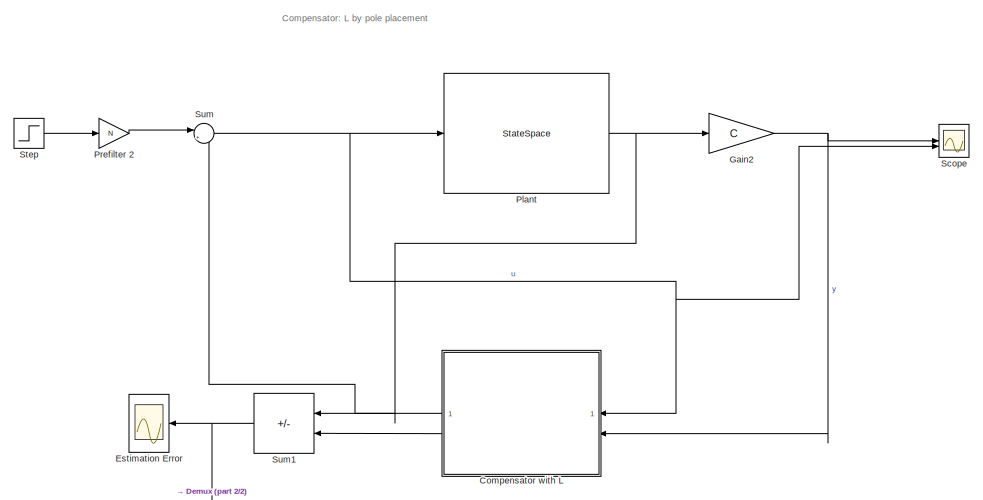
[diagram: root canvas - part 1/2, full width, top band]
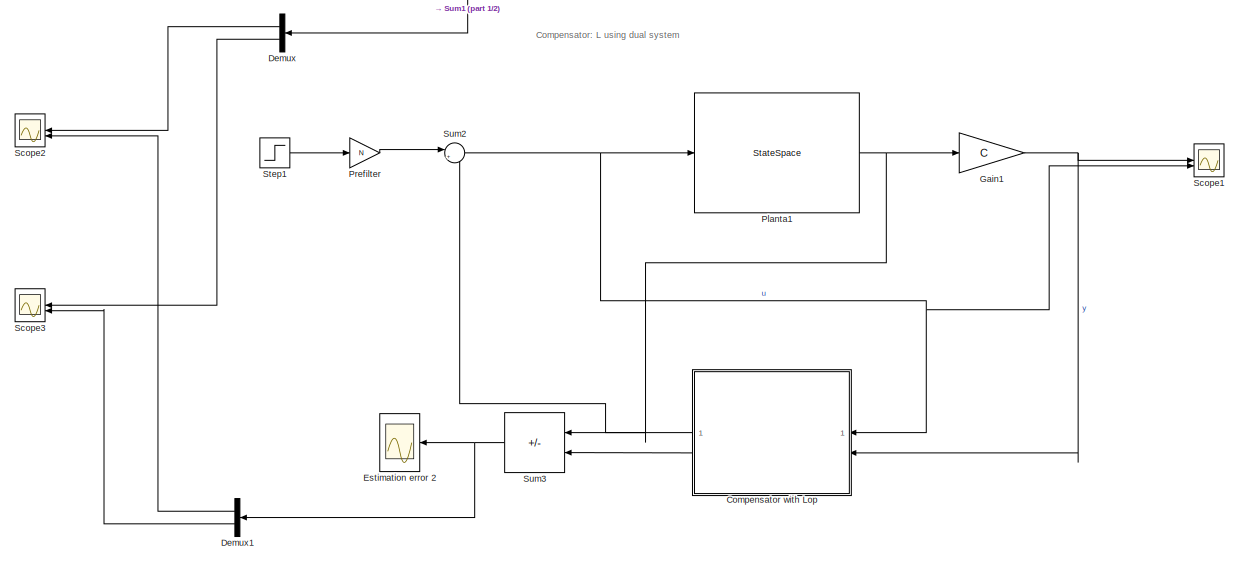
[diagram: root canvas - part 2/2, full width, bottom band]
MODEL slx_ad38aed5e36f
KIND model
CONFIG AbsTol = auto
CONFIG EnableMultiTasking = off
CONFIG FixedStep = auto
CONFIG MaxStep = 1e-3
CONFIG MinStep = auto
CONFIG RelTol = 1e-3
CONFIG SampleTimeConstraint = Unconstrained
CONFIG SolverName = VariableStepAuto
CONFIG StartTime = 0.0
CONFIG StopTime = 5
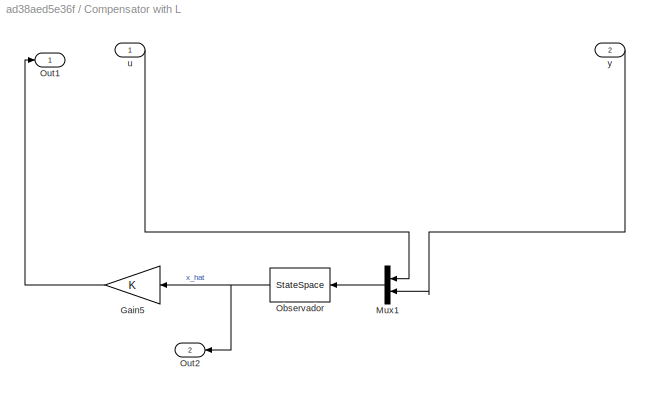
BLOCK [SubSystem] Compensator with L
BLOCK [Gain] Compensator with L/Gain5
  Gain = K
  Multiplication = Matrix(K*u) (u vector)
  NameLocation = top
BLOCK [Mux] Compensator with L/Mux1
  DisplayOption = bar
  Inputs = 2
BLOCK [StateSpace] Compensator with L/Observador
  A = A-L*C
  B = [B L]
  C = eye(2)
  D = zeros(2,2)
  InitialCondition = 0
BLOCK [Outport] Compensator with L/Out1
  VectorParamsAs1DForOutWhenUnconnected = off
BLOCK [Outport] Compensator with L/Out2
  Port = 2
  VectorParamsAs1DForOutWhenUnconnected = off
BLOCK [Inport] Compensator with L/u
BLOCK [Inport] Compensator with L/y
  Port = 2
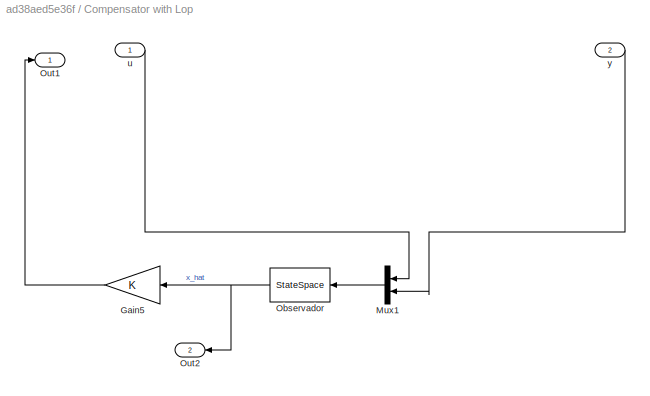
BLOCK [SubSystem] Compensator with Lop
BLOCK [Gain] Compensator with Lop/Gain5
  Gain = K
  Multiplication = Matrix(K*u) (u vector)
  NameLocation = top
BLOCK [Mux] Compensator with Lop/Mux1
  DisplayOption = bar
  Inputs = 2
BLOCK [StateSpace] Compensator with Lop/Observador
  A = A-Lop*C
  B = [B Lop]
  C = eye(2)
  D = zeros(2,2)
  InitialCondition = 0
BLOCK [Outport] Compensator with Lop/Out1
  VectorParamsAs1DForOutWhenUnconnected = off
BLOCK [Outport] Compensator with Lop/Out2
  Port = 2
  VectorParamsAs1DForOutWhenUnconnected = off
BLOCK [Inport] Compensator with Lop/u
BLOCK [Inport] Compensator with Lop/y
  Port = 2
BLOCK [Demux] Demux
  Outputs = 2
BLOCK [Demux] Demux1
  Outputs = 2
BLOCK [Scope] Estimation Error
  Floating = off
  NumInputPorts = 1
  ScopeSpecificationString = Simulink.scopes.TimeScopeBlockCfg('CurrentConfiguration', extmgr.ConfigurationSet(extmgr.Configuration('Core','General UI',true),extmgr.Configuration('Core','Source UI',true),extmgr.Configuration('Sources','WiredSimulink',true,'DataLoggingVariableName','ScopeData1'),extmgr.Configuration('Visuals','Time Domain',true,'SerializedDisplays',{struct('MinYLimReal','-0.00000000000000031','MaxYLimReal','0....<+1528ch>
BLOCK [Scope] Estimation error 2
  Floating = off
  NumInputPorts = 1
  ScopeSpecificationString = Simulink.scopes.TimeScopeBlockCfg('CurrentConfiguration', extmgr.ConfigurationSet(extmgr.Configuration('Core','General UI',true),extmgr.Configuration('Core','Source UI',true),extmgr.Configuration('Sources','WiredSimulink',true,'DataLoggingVariableName','ScopeData2'),extmgr.Configuration('Visuals','Time Domain',true,'SerializedDisplays',{struct('MinYLimReal','-0.0000000000000017','MaxYLimReal','0.0...<+1520ch>
BLOCK [Gain] Gain1
  Gain = C
  Multiplication = Matrix(K*u) (u vector)
BLOCK [Gain] Gain2
  Gain = C
  Multiplication = Matrix(K*u) (u vector)
BLOCK [StateSpace] Plant
  A = A
  B = B
  C = eye(2)
  D = zeros(2,1)
  InitialCondition = 0
BLOCK [StateSpace] Planta1
  A = A
  B = B
  C = eye(2)
  D = zeros(2,1)
  InitialCondition = 0
BLOCK [Gain] Prefilter
  Gain = N
BLOCK [Gain] Prefilter 2
  Gain = N
BLOCK [Scope] Scope
  Floating = off
  NumInputPorts = 2
  ScopeSpecificationString = Simulink.scopes.TimeScopeBlockCfg('CurrentConfiguration', extmgr.ConfigurationSet(extmgr.Configuration('Core','General UI',true,'FigureColor',[1 1 1]),extmgr.Configuration('Core','Source UI',true),extmgr.Configuration('Sources','WiredSimulink',true),extmgr.Configuration('Visuals','Time Domain',true,'SerializedDisplays',{struct('MinYLimReal','-13.31119','MaxYLimReal','51.77445','YLabelReal','','Min...<+1609ch>
BLOCK [Scope] Scope1
  Floating = off
  NumInputPorts = 2
  ScopeSpecificationString = Simulink.scopes.TimeScopeBlockCfg('CurrentConfiguration', extmgr.ConfigurationSet(extmgr.Configuration('Core','General UI',true,'FigureColor',[1 1 1]),extmgr.Configuration('Core','Source UI',true),extmgr.Configuration('Sources','WiredSimulink',true,'DataLoggingVariableName','ScopeData3'),extmgr.Configuration('Visuals','Time Domain',true,'SerializedDisplays',{struct('MinYLimReal','-13.31119','MaxYL...<+1697ch>
BLOCK [Scope] Scope2
  Floating = off
  NumInputPorts = 2
  ScopeSpecificationString = Simulink.scopes.TimeScopeBlockCfg('CurrentConfiguration', extmgr.ConfigurationSet(extmgr.Configuration('Core','General UI',true,'FigureColor',[1 1 1]),extmgr.Configuration('Core','Source UI',true),extmgr.Configuration('Sources','WiredSimulink',true,'DataLoggingVariableName','ScopeData1'),extmgr.Configuration('Visuals','Time Domain',true,'SerializedDisplays',{struct('MinYLimReal','-0.00000000000000...<+1679ch>
BLOCK [Scope] Scope3
  Floating = off
  NumInputPorts = 2
  ScopeSpecificationString = Simulink.scopes.TimeScopeBlockCfg('CurrentConfiguration', extmgr.ConfigurationSet(extmgr.Configuration('Core','General UI',true,'FigureColor',[1 1 1]),extmgr.Configuration('Core','Source UI',true),extmgr.Configuration('Sources','WiredSimulink',true,'DataLoggingVariableName','ScopeData2'),extmgr.Configuration('Visuals','Time Domain',true,'SerializedDisplays',{struct('MinYLimReal','-0.00000000000000...<+1721ch>
BLOCK [Step] Step
  SampleTime = 0
BLOCK [Step] Step1
  SampleTime = 0
BLOCK [Sum] Sum
  Inputs = |+-
BLOCK [Sum] Sum1
  IconShape = rectangular
  Inputs = |+-
BLOCK [Sum] Sum2
  Inputs = |+-
BLOCK [Sum] Sum3
  IconShape = rectangular
  Inputs = |+-
ANNOTATION (root): Compensator: L by pole placement
ANNOTATION (root): Compensator: L using dual system
LINE Compensator with L/Gain5:1 -> Compensator with L/Out1:1
LINE Compensator with L/Mux1:1 -> Compensator with L/Observador:1
NET Compensator with L/Observador:1 -> Compensator with L/Gain5:1, Compensator with L/Out2:1
LINE Compensator with L/u:1 -> Compensator with L/Mux1:1
LINE Compensator with L/y:1 -> Compensator with L/Mux1:2
LINE Compensator with L:1 -> Sum:2
LINE Compensator with L:2 -> Sum1:2
LINE Compensator with Lop/Gain5:1 -> Compensator with Lop/Out1:1
LINE Compensator with Lop/Mux1:1 -> Compensator with Lop/Observador:1
NET Compensator with Lop/Observador:1 -> Compensator with Lop/Gain5:1, Compensator with Lop/Out2:1
LINE Compensator with Lop/u:1 -> Compensator with Lop/Mux1:1
LINE Compensator with Lop/y:1 -> Compensator with Lop/Mux1:2
LINE Compensator with Lop:1 -> Sum2:2
LINE Compensator with Lop:2 -> Sum3:2
LINE Demux1:1 -> Scope2:2
LINE Demux1:2 -> Scope3:2
LINE Demux:1 -> Scope2:1
LINE Demux:2 -> Scope3:1
NET Gain1:1 -> Compensator with Lop:2, Scope1:1
NET Gain2:1 -> Compensator with L:2, Scope:1
NET Plant:1 -> Gain2:1, Sum1:1
NET Planta1:1 -> Gain1:1, Sum3:1
LINE Prefilter 2:1 -> Sum:1
LINE Prefilter:1 -> Sum2:1
LINE Step1:1 -> Prefilter:1
LINE Step:1 -> Prefilter 2:1
NET Sum1:1 -> Demux:1, Estimation Error:1
NET Sum2:1 -> Compensator with Lop:1, Planta1:1, Scope1:2
NET Sum3:1 -> Demux1:1, Estimation error 2:1
NET Sum:1 -> Compensator with L:1, Plant:1, Scope:2
note: NET lines group one-source signal fan-out (src -> all destinations, sorted); 1:1 wires keep LINE
